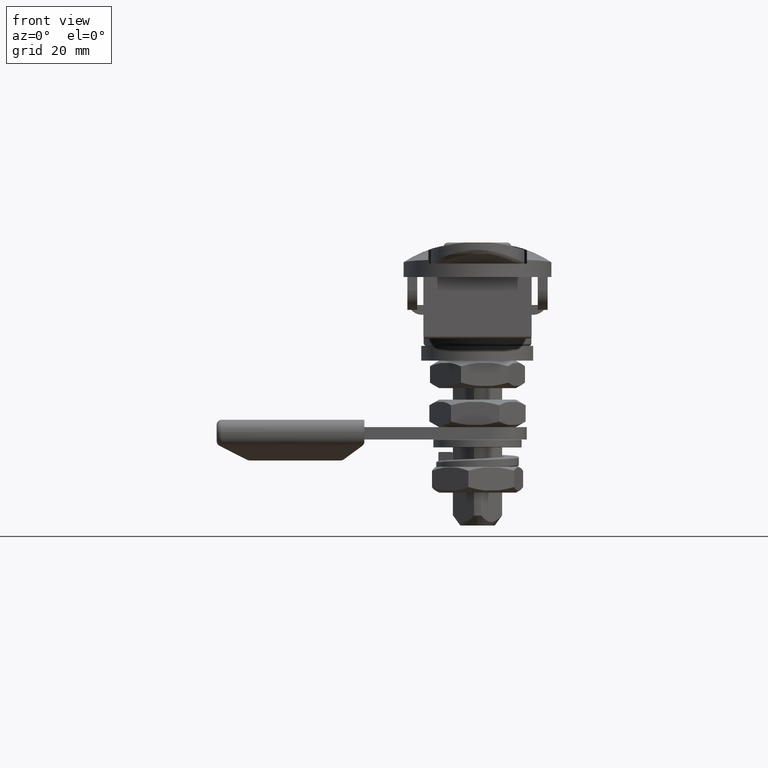
[diagram: clean part render]
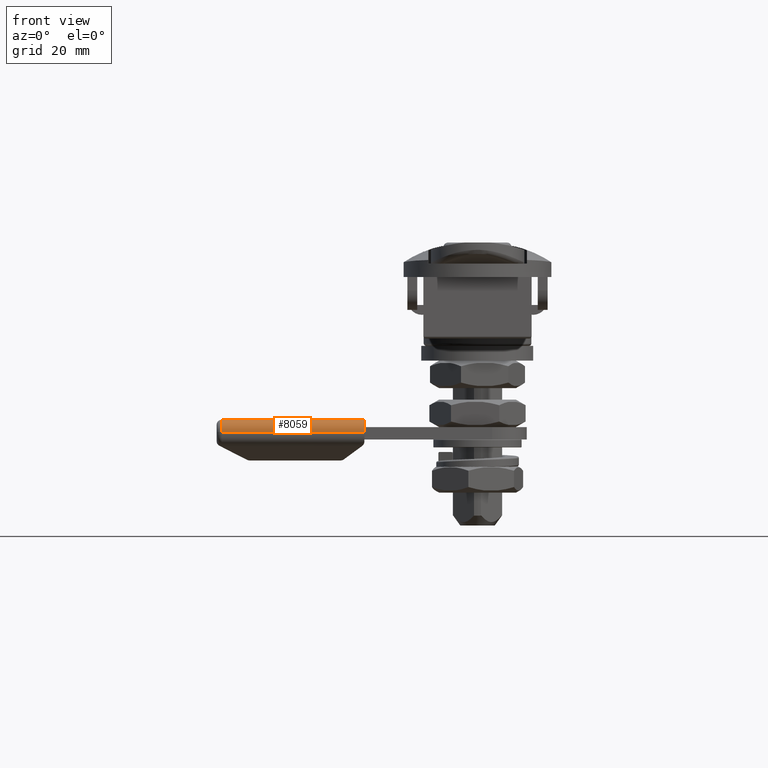
[diagram: same view with one face highlighted and labeled with its STEP entity id]
A machine part, front view. The second image highlights one B-rep face of the part: STEP entity #8059.
In plain terms, the highlighted cylindrical surface (edge-blend (fillet) strip) has radius 2.5 mm, axis along (-1, -0, -0).
Its self-contained STEP definition (entity closure, byte-faithful):
#743=LINE('',#13519,#1335);
#745=LINE('',#13523,#1337);
#1335=VECTOR('',#10421,29.);
#1337=VECTOR('',#10425,29.);
#2138=FACE_OUTER_BOUND('',#2664,.T.);
#2664=EDGE_LOOP('',(#6431,#6432,#6433,#6434));
#3147=CIRCLE('',#8761,2.5);
#3154=CIRCLE('',#8775,2.5);
#3726=VERTEX_POINT('',#13485);
#3728=VERTEX_POINT('',#13491);
#3734=VERTEX_POINT('',#13518);
#3735=VERTEX_POINT('',#13522);
#4688=EDGE_CURVE('',#3728,#3726,#3147,.T.);
#4702=EDGE_CURVE('',#3734,#3726,#743,.T.);
#4704=EDGE_CURVE('',#3728,#3735,#745,.T.);
#4705=EDGE_CURVE('',#3735,#3734,#3154,.T.);
#6431=ORIENTED_EDGE('',*,*,#4688,.F.);
#6432=ORIENTED_EDGE('',*,*,#4704,.T.);
#6433=ORIENTED_EDGE('',*,*,#4705,.T.);
#6434=ORIENTED_EDGE('',*,*,#4702,.T.);
#7753=CYLINDRICAL_SURFACE('',#8774,2.5);
#8059=ADVANCED_FACE('',(#2138),#7753,.T.);
#8761=AXIS2_PLACEMENT_3D('',#13493,#10388,#10389);
#8774=AXIS2_PLACEMENT_3D('',#13521,#10423,#10424);
#8775=AXIS2_PLACEMENT_3D('',#13524,#10426,#10427);
#10388=DIRECTION('center_axis',(1.,0.,0.));
#10389=DIRECTION('ref_axis',(0.,-0.707106781186548,-0.707106781186547));
#10421=DIRECTION('',(1.,0.,0.));
#10423=DIRECTION('center_axis',(1.,0.,0.));
#10424=DIRECTION('ref_axis',(0.,-0.707106781186547,-0.707106781186547));
#10425=DIRECTION('',(-1.,0.,0.));
#10426=DIRECTION('center_axis',(1.,0.,0.));
#10427=DIRECTION('ref_axis',(0.,-0.707106781186547,-0.707106781186547));
#13485=CARTESIAN_POINT('',(52.,-10.5,-2.75));
#13491=CARTESIAN_POINT('',(52.,-13.,-0.250000000000004));
#13493=CARTESIAN_POINT('Origin',(52.,-10.5,-0.250000000000004));
#13518=CARTESIAN_POINT('',(23.,-10.5,-2.75));
#13519=CARTESIAN_POINT('',(51.5,-10.5,-2.75));
#13521=CARTESIAN_POINT('Origin',(51.5,-10.5,-0.250000000000004));
#13522=CARTESIAN_POINT('',(23.,-13.,-0.250000000000004));
#13523=CARTESIAN_POINT('',(51.5,-13.,-0.250000000000004));
#13524=CARTESIAN_POINT('Origin',(23.,-10.5,-0.250000000000004));